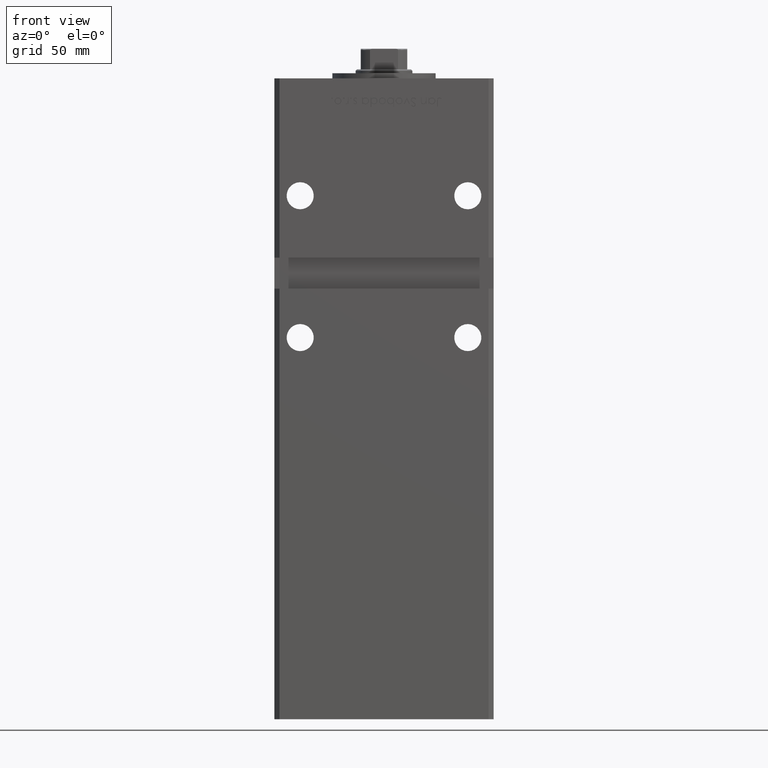
[diagram: clean part render]
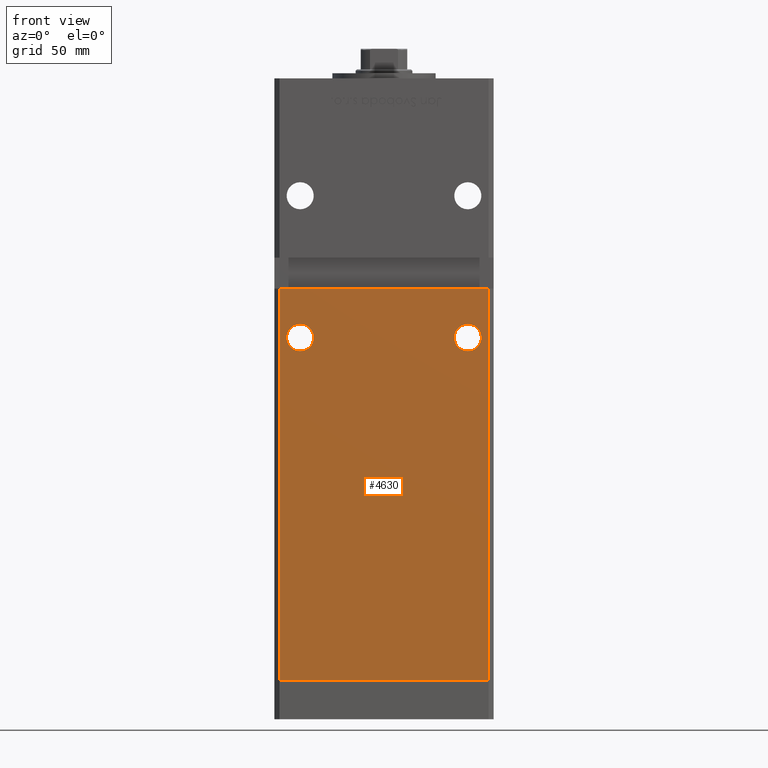
[diagram: same view with one face highlighted and labeled with its STEP entity id]
A machine part, front view. The second image highlights one B-rep face of the part: STEP entity #4630.
In plain terms, the highlighted planar face has unit normal (0, 1, 0).
Its self-contained STEP definition (entity closure, byte-faithful):
#416 = CARTESIAN_POINT ( 'NONE',  ( 32.50000000000000000, -37.50000000000000711, 138.2500000000000000 ) ) ;
#878 = DIRECTION ( 'NONE',  ( 0.000000000000000000, 0.000000000000000000, 1.000000000000000000 ) ) ;
#1401 = DIRECTION ( 'NONE',  ( 0.000000000000000000, 1.000000000000000000, 0.000000000000000000 ) ) ;
#2097 = CIRCLE ( 'NONE', #20136, 5.250000000000004441 ) ;
#3753 = EDGE_CURVE ( 'NONE', #12153, #7682, #20817, .T. ) ;
#4630 = ADVANCED_FACE ( 'NONE', ( #40367, #23207, #18906 ), #23736, .F. ) ;
#5338 = AXIS2_PLACEMENT_3D ( 'NONE', #7326, #35555, #51653 ) ;
#5506 = VECTOR ( 'NONE', #24327, 1000.000000000000000 ) ;
#5518 = CARTESIAN_POINT ( 'NONE',  ( 40.49999999999998579, -37.50000000000000711, 0.000000000000000000 ) ) ;
#6918 = DIRECTION ( 'NONE',  ( 0.000000000000000000, 0.000000000000000000, 1.000000000000000000 ) ) ;
#7326 = CARTESIAN_POINT ( 'NONE',  ( 32.50000000000000000, -37.50000000000000711, 133.0000000000000000 ) ) ;
#7588 = DIRECTION ( 'NONE',  ( 0.000000000000000000, 1.000000000000000000, 0.000000000000000000 ) ) ;
#7628 = VERTEX_POINT ( 'NONE', #15508 ) ;
#7682 = VERTEX_POINT ( 'NONE', #416 ) ;
#8303 = VERTEX_POINT ( 'NONE', #5518 ) ;
#8325 = EDGE_CURVE ( 'NONE', #23125, #8303, #9821, .T. ) ;
#8421 = VECTOR ( 'NONE', #17962, 1000.000000000000000 ) ;
#8797 = AXIS2_PLACEMENT_3D ( 'NONE', #51932, #7588, #35294 ) ;
#8841 = LINE ( 'NONE', #21217, #8421 ) ;
#9288 = DIRECTION ( 'NONE',  ( 1.000000000000000000, 0.000000000000000000, 0.000000000000000000 ) ) ;
#9821 = LINE ( 'NONE', #12794, #42185 ) ;
#10157 = EDGE_CURVE ( 'NONE', #19078, #7628, #19901, .T. ) ;
#12153 = VERTEX_POINT ( 'NONE', #51937 ) ;
#12227 = CARTESIAN_POINT ( 'NONE',  ( -42.49999999999998579, -37.50000000000000711, 152.0000000000000284 ) ) ;
#12794 = CARTESIAN_POINT ( 'NONE',  ( -40.49999999999998579, -37.50000000000000711, 0.000000000000000000 ) ) ;
#13315 = CARTESIAN_POINT ( 'NONE',  ( 40.49999999999998579, -37.50000000000000711, 152.0000000000000284 ) ) ;
#14044 = CARTESIAN_POINT ( 'NONE',  ( 32.50000000000000000, -37.50000000000000711, 133.0000000000000000 ) ) ;
#14062 = DIRECTION ( 'NONE',  ( 0.000000000000000000, 1.000000000000000000, 0.000000000000000000 ) ) ;
#15249 = DIRECTION ( 'NONE',  ( 0.000000000000000000, 1.000000000000000000, 0.000000000000000000 ) ) ;
#15384 = EDGE_CURVE ( 'NONE', #28999, #8303, #21655, .T. ) ;
#15508 = CARTESIAN_POINT ( 'NONE',  ( -32.50000000000000000, -37.50000000000000711, 138.2500000000000000 ) ) ;
#17277 = DIRECTION ( 'NONE',  ( 0.000000000000000000, 0.000000000000000000, 1.000000000000000000 ) ) ;
#17800 = EDGE_CURVE ( 'NONE', #7628, #19078, #2097, .T. ) ;
#17962 = DIRECTION ( 'NONE',  ( -0.000000000000000000, -0.000000000000000000, -1.000000000000000000 ) ) ;
#18773 = ORIENTED_EDGE ( 'NONE', *, *, #49923, .F. ) ;
#18906 = FACE_OUTER_BOUND ( 'NONE', #38564, .T. ) ;
#19078 = VERTEX_POINT ( 'NONE', #45497 ) ;
#19205 = EDGE_CURVE ( 'NONE', #7682, #12153, #42372, .T. ) ;
#19901 = CIRCLE ( 'NONE', #28516, 5.250000000000004441 ) ;
#20057 = ORIENTED_EDGE ( 'NONE', *, *, #15384, .F. ) ;
#20063 = EDGE_LOOP ( 'NONE', ( #21327, #43985 ) ) ;
#20136 = AXIS2_PLACEMENT_3D ( 'NONE', #26824, #15249, #6918 ) ;
#20817 = CIRCLE ( 'NONE', #5338, 5.250000000000004441 ) ;
#21217 = CARTESIAN_POINT ( 'NONE',  ( -40.49999999999998579, -37.50000000000000711, 218.5000000000000000 ) ) ;
#21327 = ORIENTED_EDGE ( 'NONE', *, *, #19205, .T. ) ;
#21655 = LINE ( 'NONE', #50909, #42378 ) ;
#21881 = CARTESIAN_POINT ( 'NONE',  ( -32.50000000000000000, -37.50000000000000711, 133.0000000000000000 ) ) ;
#22769 = AXIS2_PLACEMENT_3D ( 'NONE', #14044, #1401, #17277 ) ;
#23125 = VERTEX_POINT ( 'NONE', #37181 ) ;
#23207 = FACE_BOUND ( 'NONE', #20063, .T. ) ;
#23736 = PLANE ( 'NONE',  #8797 ) ;
#23840 = ORIENTED_EDGE ( 'NONE', *, *, #10157, .T. ) ;
#24017 = CARTESIAN_POINT ( 'NONE',  ( -40.49999999999998579, -37.50000000000000711, 152.0000000000000284 ) ) ;
#24327 = DIRECTION ( 'NONE',  ( 1.000000000000000000, 0.000000000000000000, 0.000000000000000000 ) ) ;
#26824 = CARTESIAN_POINT ( 'NONE',  ( -32.50000000000000000, -37.50000000000000711, 133.0000000000000000 ) ) ;
#28516 = AXIS2_PLACEMENT_3D ( 'NONE', #21881, #14062, #878 ) ;
#28999 = VERTEX_POINT ( 'NONE', #13315 ) ;
#30289 = ORIENTED_EDGE ( 'NONE', *, *, #8325, .T. ) ;
#34820 = DIRECTION ( 'NONE',  ( -0.000000000000000000, -0.000000000000000000, -1.000000000000000000 ) ) ;
#35294 = DIRECTION ( 'NONE',  ( 0.000000000000000000, -0.000000000000000000, 1.000000000000000000 ) ) ;
#35352 = EDGE_CURVE ( 'NONE', #42047, #23125, #8841, .T. ) ;
#35555 = DIRECTION ( 'NONE',  ( 0.000000000000000000, 1.000000000000000000, 0.000000000000000000 ) ) ;
#36695 = LINE ( 'NONE', #12227, #5506 ) ;
#37181 = CARTESIAN_POINT ( 'NONE',  ( -40.49999999999998579, -37.50000000000000711, 0.000000000000000000 ) ) ;
#37679 = ORIENTED_EDGE ( 'NONE', *, *, #17800, .T. ) ;
#38564 = EDGE_LOOP ( 'NONE', ( #20057, #18773, #50270, #30289 ) ) ;
#40367 = FACE_BOUND ( 'NONE', #49014, .T. ) ;
#42047 = VERTEX_POINT ( 'NONE', #24017 ) ;
#42185 = VECTOR ( 'NONE', #9288, 1000.000000000000000 ) ;
#42372 = CIRCLE ( 'NONE', #22769, 5.250000000000004441 ) ;
#42378 = VECTOR ( 'NONE', #34820, 1000.000000000000000 ) ;
#43985 = ORIENTED_EDGE ( 'NONE', *, *, #3753, .T. ) ;
#45497 = CARTESIAN_POINT ( 'NONE',  ( -32.50000000000000000, -37.50000000000000711, 127.7500000000000000 ) ) ;
#49014 = EDGE_LOOP ( 'NONE', ( #37679, #23840 ) ) ;
#49923 = EDGE_CURVE ( 'NONE', #42047, #28999, #36695, .T. ) ;
#50270 = ORIENTED_EDGE ( 'NONE', *, *, #35352, .T. ) ;
#50909 = CARTESIAN_POINT ( 'NONE',  ( 40.49999999999998579, -37.50000000000000711, 218.5000000000000000 ) ) ;
#51653 = DIRECTION ( 'NONE',  ( 0.000000000000000000, 0.000000000000000000, 1.000000000000000000 ) ) ;
#51932 = CARTESIAN_POINT ( 'NONE',  ( -40.49999999999998579, -37.50000000000000711, 218.5000000000000000 ) ) ;
#51937 = CARTESIAN_POINT ( 'NONE',  ( 32.50000000000000000, -37.50000000000000711, 127.7500000000000000 ) ) ;